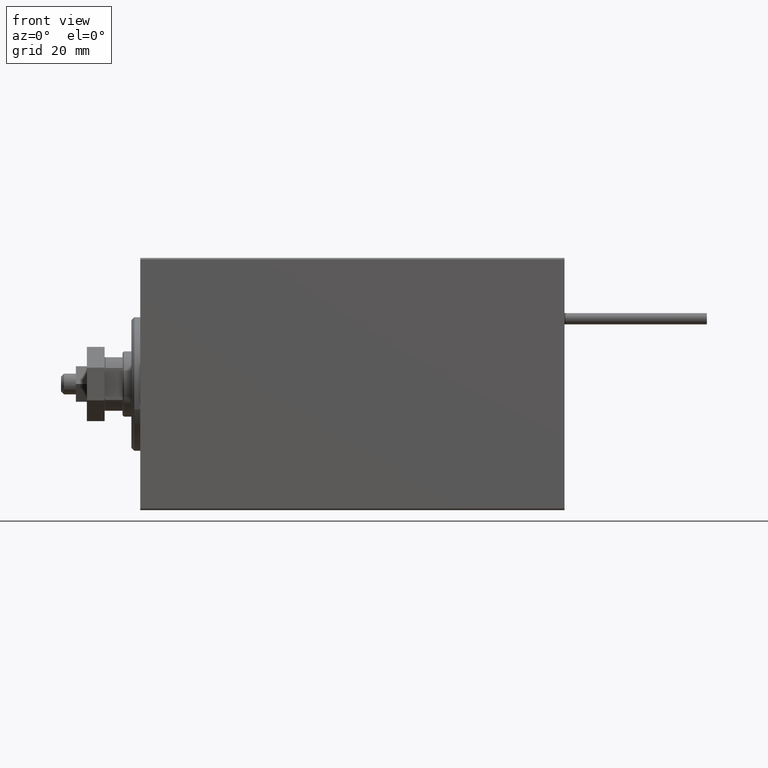
[diagram: clean part render]
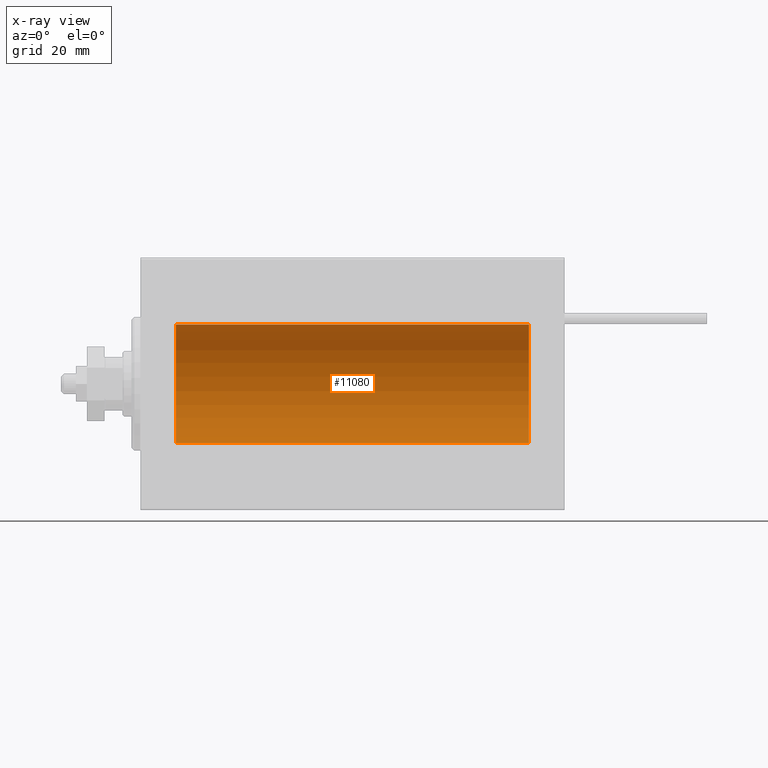
[diagram: x-ray — body ghosted, one internal face saturated and labeled with its STEP entity id]
A machine part, front view, then the same camera in x-ray: the body is ghosted and one INTERNAL B-rep face — a face not visible from any outside direction — is saturated and labeled: STEP entity #11080.
In plain terms, the highlighted cylindrical surface (partial cylindrical patch) has radius 20 mm, axis along (-1, -0, -0).
Its self-contained STEP definition (entity closure, byte-faithful):
#2736 = VECTOR ( 'NONE', #36828, 1000.000000000000000 ) ;
#3851 = ORIENTED_EDGE ( 'NONE', *, *, #41256, .T. ) ;
#5147 = CIRCLE ( 'NONE', #9151, 20.00000000000000000 ) ;
#6069 = DIRECTION ( 'NONE',  ( -1.000000000000000000, 0.000000000000000000, 0.000000000000000000 ) ) ;
#6287 = CARTESIAN_POINT ( 'NONE',  ( 131.0000000000000000, 2.449293598294706513E-15, -20.00000000000000000 ) ) ;
#6311 = DIRECTION ( 'NONE',  ( 0.000000000000000000, 0.000000000000000000, 1.000000000000000000 ) ) ;
#7664 = AXIS2_PLACEMENT_3D ( 'NONE', #20190, #31322, #19946 ) ;
#9151 = AXIS2_PLACEMENT_3D ( 'NONE', #9611, #6069, #6311 ) ;
#9611 = CARTESIAN_POINT ( 'NONE',  ( 11.99999999999999645, 0.000000000000000000, 0.000000000000000000 ) ) ;
#11080 = ADVANCED_FACE ( 'NONE', ( #24168 ), #32520, .F. ) ;
#13305 = CARTESIAN_POINT ( 'NONE',  ( 131.0000000000000000, 0.000000000000000000, 0.000000000000000000 ) ) ;
#14024 = LINE ( 'NONE', #25904, #2736 ) ;
#14764 = VECTOR ( 'NONE', #35869, 1000.000000000000000 ) ;
#15585 = AXIS2_PLACEMENT_3D ( 'NONE', #13305, #36324, #39620 ) ;
#16203 = CARTESIAN_POINT ( 'NONE',  ( 131.0000000000000000, 0.000000000000000000, 20.00000000000000000 ) ) ;
#17699 = CARTESIAN_POINT ( 'NONE',  ( 11.99999999999999645, 0.000000000000000000, 20.00000000000000000 ) ) ;
#19946 = DIRECTION ( 'NONE',  ( 0.000000000000000000, 0.000000000000000000, 1.000000000000000000 ) ) ;
#20190 = CARTESIAN_POINT ( 'NONE',  ( 131.0000000000000000, 0.000000000000000000, 0.000000000000000000 ) ) ;
#22696 = ORIENTED_EDGE ( 'NONE', *, *, #44926, .F. ) ;
#23721 = CARTESIAN_POINT ( 'NONE',  ( 131.0000000000000000, 2.449293598294706513E-15, -20.00000000000000000 ) ) ;
#23876 = VERTEX_POINT ( 'NONE', #37641 ) ;
#24168 = FACE_OUTER_BOUND ( 'NONE', #40976, .T. ) ;
#25904 = CARTESIAN_POINT ( 'NONE',  ( 131.0000000000000000, 0.000000000000000000, 20.00000000000000000 ) ) ;
#27075 = CIRCLE ( 'NONE', #7664, 20.00000000000000000 ) ;
#29750 = VERTEX_POINT ( 'NONE', #6287 ) ;
#30843 = ORIENTED_EDGE ( 'NONE', *, *, #35590, .F. ) ;
#31322 = DIRECTION ( 'NONE',  ( -1.000000000000000000, 0.000000000000000000, 0.000000000000000000 ) ) ;
#32520 = CYLINDRICAL_SURFACE ( 'NONE', #15585, 20.00000000000000000 ) ;
#35351 = LINE ( 'NONE', #23721, #14764 ) ;
#35590 = EDGE_CURVE ( 'NONE', #29750, #23876, #35351, .T. ) ;
#35869 = DIRECTION ( 'NONE',  ( -1.000000000000000000, -0.000000000000000000, -0.000000000000000000 ) ) ;
#36324 = DIRECTION ( 'NONE',  ( -1.000000000000000000, -0.000000000000000000, -0.000000000000000000 ) ) ;
#36828 = DIRECTION ( 'NONE',  ( -1.000000000000000000, -0.000000000000000000, -0.000000000000000000 ) ) ;
#37641 = CARTESIAN_POINT ( 'NONE',  ( 11.99999999999999645, 2.449293598294706513E-15, -20.00000000000000000 ) ) ;
#38488 = VERTEX_POINT ( 'NONE', #17699 ) ;
#39620 = DIRECTION ( 'NONE',  ( 0.000000000000000000, 0.000000000000000000, 1.000000000000000000 ) ) ;
#40976 = EDGE_LOOP ( 'NONE', ( #30843, #22696, #49534, #3851 ) ) ;
#41141 = VERTEX_POINT ( 'NONE', #16203 ) ;
#41256 = EDGE_CURVE ( 'NONE', #38488, #23876, #5147, .T. ) ;
#43217 = EDGE_CURVE ( 'NONE', #41141, #38488, #14024, .T. ) ;
#44926 = EDGE_CURVE ( 'NONE', #41141, #29750, #27075, .T. ) ;
#49534 = ORIENTED_EDGE ( 'NONE', *, *, #43217, .T. ) ;